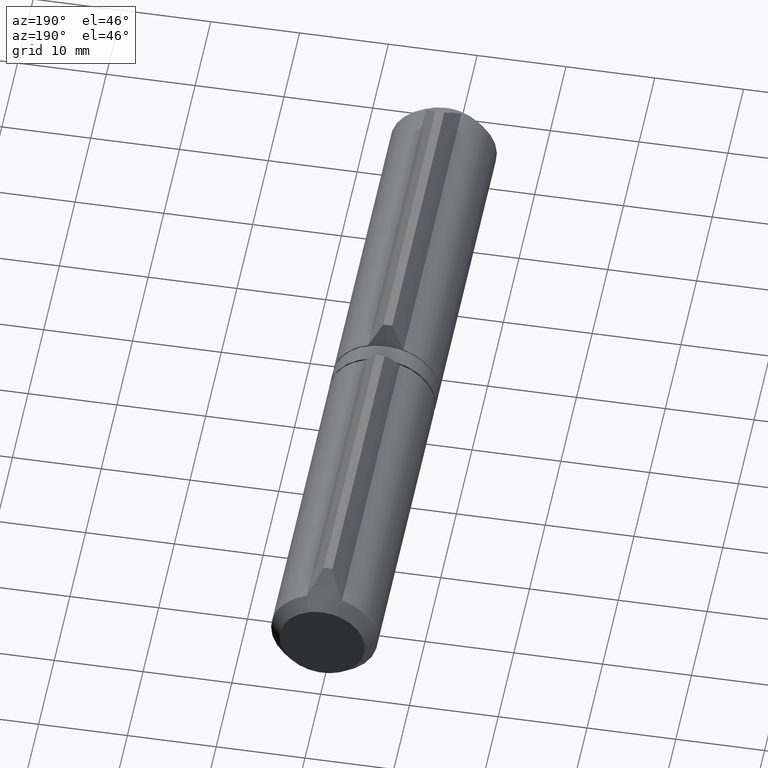
[diagram: clean part render]
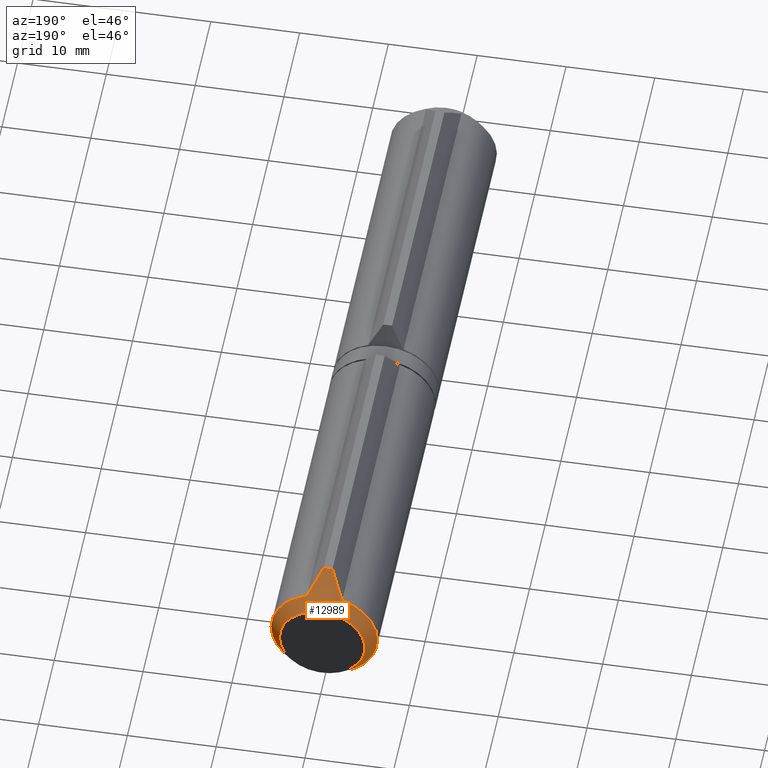
[diagram: same view with one face highlighted and labeled with its STEP entity id]
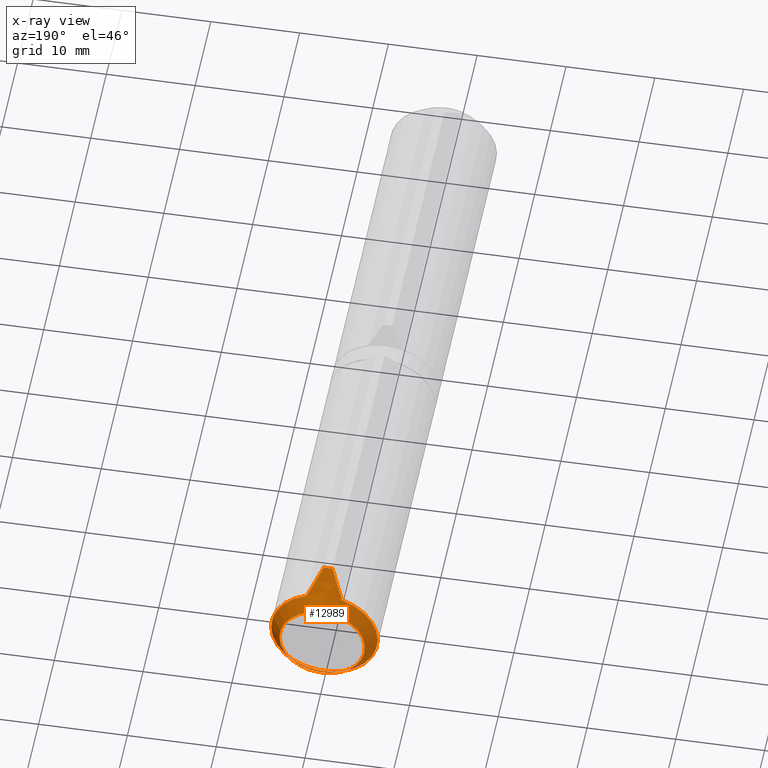
[diagram: x-ray of the same camera — body ghosted, the highlighted face saturated]
A machine part, auxiliary view. The second image highlights one B-rep face of the part: STEP entity #12989.
The next image is the same camera in x-ray: the body ghosted, the highlighted face saturated — about 0% of this face is hidden behind the body in this view.
In plain terms, the highlighted conical surface has half-angle 40.139 deg.
Its self-contained STEP definition (entity closure, byte-faithful):
#102 = CARTESIAN_POINT ( 'NONE',  ( 0.9806260406199139856, 2.958706340473705065, -7.249215423558766247 ) ) ;
#458 = CARTESIAN_POINT ( 'NONE',  ( -1.732366231721674144, 1.768573839175479945, -6.074924200714847622 ) ) ;
#667 = CARTESIAN_POINT ( 'NONE',  ( 0.000000000000000000, 11.85897568334573826, 2.146167846992568494E-17 ) ) ;
#1174 = CARTESIAN_POINT ( 'NONE',  ( 0.000000000000000000, -8.711390972962024627E-18, -1.576536431810755588E-35 ) ) ;
#1300 = AXIS2_PLACEMENT_3D ( 'NONE', #1174, #9247, #17437 ) ;
#1888 = EDGE_CURVE ( 'NONE', #12016, #10625, #4505, .T. ) ;
#1931 = EDGE_CURVE ( 'NONE', #4000, #12016, #3268, .T. ) ;
#2019 = CARTESIAN_POINT ( 'NONE',  ( -1.477437871094589905, 2.156688273818840873, -6.473147070639664769 ) ) ;
#2470 = B_SPLINE_CURVE_WITH_KNOTS ( 'NONE', 3,
 ( #6957, #12528, #102, #8282, #9706, #16530 ),
 .UNSPECIFIED., .F., .F.,
 ( 4, 2, 4 ),
 ( 0.01168881925991853074, 0.01352492976946370606, 0.01536104027900888139 ),
 .UNSPECIFIED. ) ;
#2506 = CARTESIAN_POINT ( 'NONE',  ( 2.000000000000000000, 1.406935711111330756, -5.656854249492381470 ) ) ;
#3048 = ORIENTED_EDGE ( 'NONE', *, *, #14285, .F. ) ;
#3268 = B_SPLINE_CURVE_WITH_KNOTS ( 'NONE', 3,
 ( #10126, #458, #2019, #11442, #14250, #13002 ),
 .UNSPECIFIED., .F., .F.,
 ( 4, 2, 4 ),
 ( 0.008838318793687779951, 0.01068355474211885731, 0.01252879069054993293 ),
 .UNSPECIFIED. ) ;
#3516 = DIRECTION ( 'NONE',  ( 0.000000000000000000, 0.000000000000000000, 1.000000000000000000 ) ) ;
#3791 = AXIS2_PLACEMENT_3D ( 'NONE', #9069, #15689, #7510 ) ;
#3891 = EDGE_LOOP ( 'NONE', ( #3048 ) ) ;
#3946 = EDGE_CURVE ( 'NONE', #4000, #16435, #17584, .T. ) ;
#4000 = VERTEX_POINT ( 'NONE', #5154 ) ;
#4505 = B_SPLINE_CURVE_WITH_KNOTS ( 'NONE', 3,
 ( #10241, #17004, #4658, #15814 ),
 .UNSPECIFIED., .F., .F.,
 ( 4, 4 ),
 ( 0.001974016315289646700, 0.002965258894014923419 ),
 .UNSPECIFIED. ) ;
#4658 = CARTESIAN_POINT ( 'NONE',  ( 0.1688100020465390649, 3.772742902869298920, -8.000000000000000000 ) ) ;
#5058 = CARTESIAN_POINT ( 'NONE',  ( 0.4999999999999998890, 3.797242437181314934, -8.000000000000000000 ) ) ;
#5154 = CARTESIAN_POINT ( 'NONE',  ( -1.999999999999999556, 1.406935711111329868, -5.656854249492381470 ) ) ;
#5464 = FACE_OUTER_BOUND ( 'NONE', #13843, .T. ) ;
#6442 = ORIENTED_EDGE ( 'NONE', *, *, #3946, .F. ) ;
#6505 = CARTESIAN_POINT ( 'NONE',  ( 0.000000000000000000, 0.000000000000000000, -4.813611100419767475 ) ) ;
#6957 = CARTESIAN_POINT ( 'NONE',  ( 0.4999999999999998890, 3.797242437181314934, -8.000000000000000000 ) ) ;
#7510 = DIRECTION ( 'NONE',  ( 0.000000000000000000, 0.000000000000000000, 1.000000000000000000 ) ) ;
#8282 = CARTESIAN_POINT ( 'NONE',  ( 1.478309809973196831, 2.155322241249905790, -6.471785017387589711 ) ) ;
#8339 = CARTESIAN_POINT ( 'NONE',  ( -0.5000000000000004441, 3.797242437181310937, -8.000000000000000000 ) ) ;
#9069 = CARTESIAN_POINT ( 'NONE',  ( 0.000000000000000000, 1.406935711111329423, 2.546189710307992062E-18 ) ) ;
#9247 = DIRECTION ( 'NONE',  ( -0.000000000000000000, -1.000000000000000000, -1.809741333736402930E-18 ) ) ;
#9348 = CIRCLE ( 'NONE', #1300, 4.813611100419767475 ) ;
#9706 = CARTESIAN_POINT ( 'NONE',  ( 1.734256403746304409, 1.766019758361599301, -6.071971568350021720 ) ) ;
#10126 = CARTESIAN_POINT ( 'NONE',  ( -1.999999999999999556, 1.406935711111329868, -5.656854249492381470 ) ) ;
#10241 = CARTESIAN_POINT ( 'NONE',  ( -0.5000000000000004441, 3.797242437181310937, -8.000000000000000000 ) ) ;
#10625 = VERTEX_POINT ( 'NONE', #5058 ) ;
#10807 = VERTEX_POINT ( 'NONE', #6505 ) ;
#11442 = CARTESIAN_POINT ( 'NONE',  ( -0.9802601912862283218, 2.959338506171141692, -7.249786915766463835 ) ) ;
#12016 = VERTEX_POINT ( 'NONE', #8339 ) ;
#12116 = FACE_BOUND ( 'NONE', #3891, .T. ) ;
#12528 = CARTESIAN_POINT ( 'NONE',  ( 0.7384190029853776593, 3.374071261203159366, -7.627566350876366030 ) ) ;
#12718 = EDGE_CURVE ( 'NONE', #10625, #16435, #2470, .T. ) ;
#12971 = CONICAL_SURFACE ( 'NONE', #17035, 14.81361110041976481, 0.7005582612656466868 ) ;
#12989 = ADVANCED_FACE ( 'NONE', ( #12116, #5464 ), #12971, .T. ) ;
#13002 = CARTESIAN_POINT ( 'NONE',  ( -0.5000000000000004441, 3.797242437181310937, -8.000000000000000000 ) ) ;
#13843 = EDGE_LOOP ( 'NONE', ( #14601, #17326, #14961, #6442 ) ) ;
#14250 = CARTESIAN_POINT ( 'NONE',  ( -0.7382496403726404033, 3.374371863819146444, -7.627830911733919805 ) ) ;
#14285 = EDGE_CURVE ( 'NONE', #10807, #10807, #9348, .T. ) ;
#14601 = ORIENTED_EDGE ( 'NONE', *, *, #1931, .T. ) ;
#14961 = ORIENTED_EDGE ( 'NONE', *, *, #12718, .T. ) ;
#15601 = DIRECTION ( 'NONE',  ( 0.000000000000000000, 1.000000000000000000, 1.809741333736402930E-18 ) ) ;
#15689 = DIRECTION ( 'NONE',  ( 0.000000000000000000, 1.000000000000000000, 1.809741333736402930E-18 ) ) ;
#15814 = CARTESIAN_POINT ( 'NONE',  ( 0.4999999999999998890, 3.797242437181314934, -8.000000000000000000 ) ) ;
#16435 = VERTEX_POINT ( 'NONE', #2506 ) ;
#16530 = CARTESIAN_POINT ( 'NONE',  ( 2.000000000000000000, 1.406935711111330756, -5.656854249492381470 ) ) ;
#17004 = CARTESIAN_POINT ( 'NONE',  ( -0.1688100020465392870, 3.772742902869298920, -8.000000000000000000 ) ) ;
#17035 = AXIS2_PLACEMENT_3D ( 'NONE', #667, #15601, #3516 ) ;
#17326 = ORIENTED_EDGE ( 'NONE', *, *, #1888, .T. ) ;
#17437 = DIRECTION ( 'NONE',  ( 0.000000000000000000, 1.809741333736402930E-18, -1.000000000000000000 ) ) ;
#17584 = CIRCLE ( 'NONE', #3791, 6.000000000000000888 ) ;